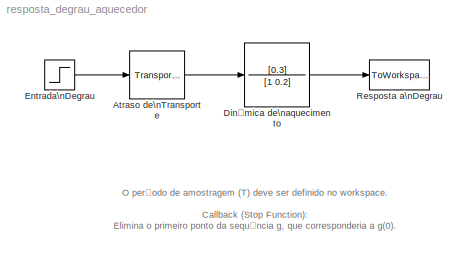
MODEL resposta_degrau_aquecedor
KIND model
CONFIG StopFcn = disp('O primeiro ponto de g nao eh armazenado !')\ng = g(2:end);\nclose all,stem(g),title('g(n)'),xlabel('n')
BLOCK [TransportDelay] Atraso de\nTransporte
  DelayTime = 2
  SID = 1
BLOCK [TransferFcn] Dinâmica de\naquecimento
  Denominator = [1 0.2]
  Numerator = [0.3]
  SID = 2
BLOCK [Step] Entrada\nDegrau
  SID = 3
  SampleTime = 0
  Time = 0
BLOCK [ToWorkspace] Resposta a\nDegrau
  MaxDataPoints = inf
  Ports = [1]
  SID = 4
  SampleTime = T
  SaveFormat = Array
  VariableName = g
ANNOTATION (root): O período de amostragem (T) deve ser definido no workspace.\n\nCallback (Stop Function):\nElimina o primeiro ponto da sequência g, que corresponderia a g(0).
LINE Atraso de\nTransporte:1 -> Dinâmica de\naquecimento:1
LINE Dinâmica de\naquecimento:1 -> Resposta a\nDegrau:1
LINE Entrada\nDegrau:1 -> Atraso de\nTransporte:1
